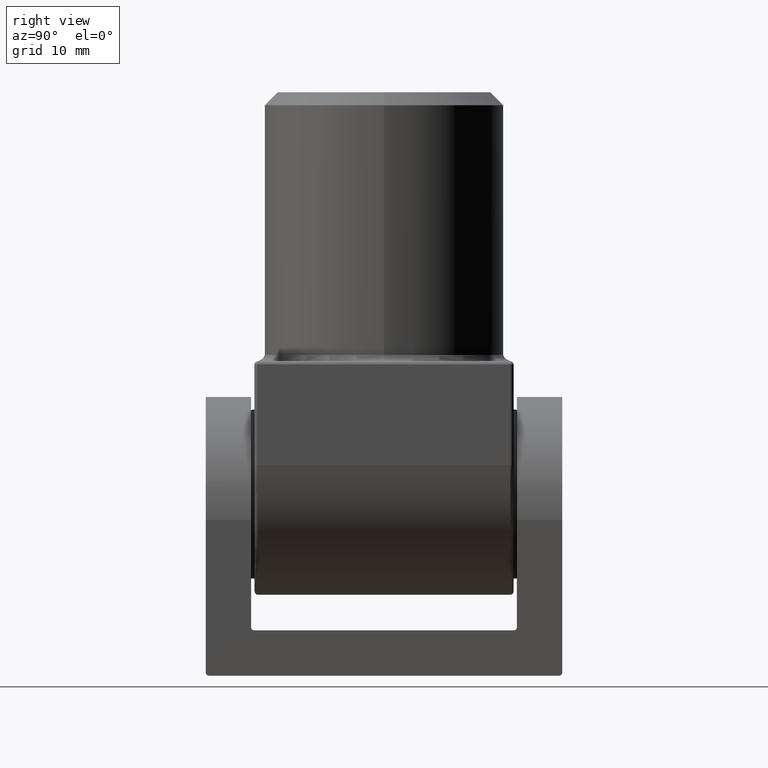
[diagram: clean part render]
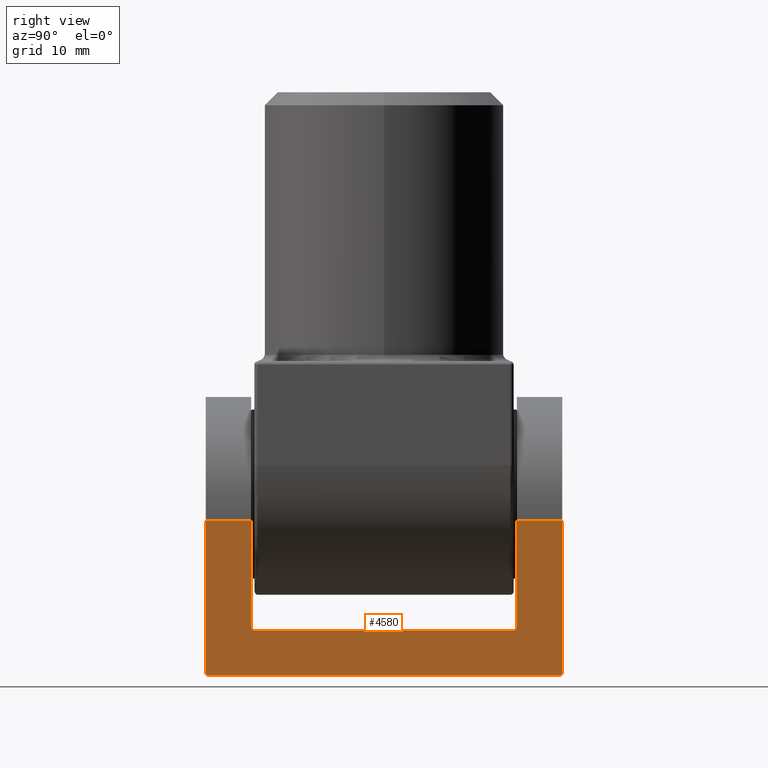
[diagram: same view with one face highlighted and labeled with its STEP entity id]
A machine part, right view. The second image highlights one B-rep face of the part: STEP entity #4580.
In plain terms, the highlighted planar face has unit normal (1, 0, 0).
Its self-contained STEP definition (entity closure, byte-faithful):
#487 = EDGE_CURVE ( 'NONE', #10644, #16123, #3998, .T. ) ;
#514 = CARTESIAN_POINT ( 'NONE',  ( 19.00000000000000000, 20.50000000000000000, 43.00000000000000000 ) ) ;
#517 = EDGE_CURVE ( 'NONE', #8284, #11794, #8267, .T. ) ;
#546 = CARTESIAN_POINT ( 'NONE',  ( 19.00000000000000000, -27.50000000000000000, 23.99999999999999645 ) ) ;
#567 = ORIENTED_EDGE ( 'NONE', *, *, #13204, .T. ) ;
#778 = CARTESIAN_POINT ( 'NONE',  ( 19.00000000000000000, 20.50000000000000000, 6.999999999999991118 ) ) ;
#838 = DIRECTION ( 'NONE',  ( 0.000000000000000000, -1.000000000000000000, 0.000000000000000000 ) ) ;
#1048 = CIRCLE ( 'NONE', #18380, 0.5000000000000004441 ) ;
#1279 = VECTOR ( 'NONE', #8686, 1000.000000000000000 ) ;
#1791 = CARTESIAN_POINT ( 'NONE',  ( 19.00000000000000000, 27.50000000000000000, 43.00000000000000000 ) ) ;
#1852 = DIRECTION ( 'NONE',  ( -0.000000000000000000, -0.000000000000000000, 1.000000000000000000 ) ) ;
#1926 = VERTEX_POINT ( 'NONE', #12676 ) ;
#2184 = CIRCLE ( 'NONE', #5671, 0.5000000000000004441 ) ;
#2414 = AXIS2_PLACEMENT_3D ( 'NONE', #18325, #3744, #12542 ) ;
#2676 = CARTESIAN_POINT ( 'NONE',  ( 19.00000000000000000, 27.00000000000000000, 0.4999999999999935052 ) ) ;
#2716 = VECTOR ( 'NONE', #12178, 1000.000000000000000 ) ;
#2845 = CIRCLE ( 'NONE', #8884, 0.5000000000000000000 ) ;
#3687 = ORIENTED_EDGE ( 'NONE', *, *, #14334, .T. ) ;
#3730 = DIRECTION ( 'NONE',  ( -1.000000000000000000, -0.000000000000000000, -0.000000000000000000 ) ) ;
#3744 = DIRECTION ( 'NONE',  ( 1.000000000000000000, 0.000000000000000000, 0.000000000000000000 ) ) ;
#3774 = VERTEX_POINT ( 'NONE', #12354 ) ;
#3879 = LINE ( 'NONE', #15039, #12233 ) ;
#3998 = LINE ( 'NONE', #778, #8712 ) ;
#4037 = CARTESIAN_POINT ( 'NONE',  ( 19.00000000000000000, 20.50000000000000000, 23.99999999999999645 ) ) ;
#4358 = ORIENTED_EDGE ( 'NONE', *, *, #4901, .T. ) ;
#4539 = ORIENTED_EDGE ( 'NONE', *, *, #17668, .T. ) ;
#4580 = ADVANCED_FACE ( 'NONE', ( #15197 ), #13933, .T. ) ;
#4825 = ORIENTED_EDGE ( 'NONE', *, *, #517, .T. ) ;
#4901 = EDGE_CURVE ( 'NONE', #5030, #13454, #3879, .T. ) ;
#5030 = VERTEX_POINT ( 'NONE', #546 ) ;
#5337 = CARTESIAN_POINT ( 'NONE',  ( 19.00000000000000000, 27.00000000000000000, -8.881158339784333749E-15 ) ) ;
#5671 = AXIS2_PLACEMENT_3D ( 'NONE', #6566, #3730, #15372 ) ;
#5764 = VECTOR ( 'NONE', #13505, 1000.000000000000000 ) ;
#6145 = EDGE_CURVE ( 'NONE', #3774, #10644, #1048, .T. ) ;
#6496 = CARTESIAN_POINT ( 'NONE',  ( 19.00000000000000000, 27.50000000000000000, -8.962636856663090566E-15 ) ) ;
#6566 = CARTESIAN_POINT ( 'NONE',  ( 19.00000000000000000, -20.00000000000000000, 7.499999999999991118 ) ) ;
#6593 = AXIS2_PLACEMENT_3D ( 'NONE', #17123, #12880, #8418 ) ;
#6810 = DIRECTION ( 'NONE',  ( 0.000000000000000000, -1.000000000000000000, 0.000000000000000000 ) ) ;
#7176 = VECTOR ( 'NONE', #1852, 1000.000000000000000 ) ;
#7186 = DIRECTION ( 'NONE',  ( 0.000000000000000000, 0.000000000000000000, -1.000000000000000000 ) ) ;
#8023 = LINE ( 'NONE', #514, #5764 ) ;
#8203 = ORIENTED_EDGE ( 'NONE', *, *, #10431, .T. ) ;
#8267 = LINE ( 'NONE', #6496, #13729 ) ;
#8284 = VERTEX_POINT ( 'NONE', #18167 ) ;
#8327 = CARTESIAN_POINT ( 'NONE',  ( 19.00000000000000000, -27.50000000000000000, 23.99999999999999645 ) ) ;
#8343 = VERTEX_POINT ( 'NONE', #11486 ) ;
#8418 = DIRECTION ( 'NONE',  ( 0.000000000000000000, 0.000000000000000000, -1.000000000000000000 ) ) ;
#8567 = EDGE_LOOP ( 'NONE', ( #4358, #16505, #4825, #8203, #3687, #4539, #14259, #18538, #17208, #18061, #567, #14308 ) ) ;
#8686 = DIRECTION ( 'NONE',  ( 0.000000000000000000, -1.000000000000000000, 0.000000000000000000 ) ) ;
#8712 = VECTOR ( 'NONE', #838, 1000.000000000000000 ) ;
#8865 = CARTESIAN_POINT ( 'NONE',  ( 19.00000000000000000, -20.00000000000000000, 6.999999999999991118 ) ) ;
#8884 = AXIS2_PLACEMENT_3D ( 'NONE', #2676, #15748, #7186 ) ;
#9252 = CARTESIAN_POINT ( 'NONE',  ( 19.00000000000000000, -20.50000000000000000, 6.999999999999991118 ) ) ;
#9299 = CARTESIAN_POINT ( 'NONE',  ( 19.00000000000000000, -20.50000000000000355, 23.99999999999999645 ) ) ;
#9475 = LINE ( 'NONE', #9252, #2716 ) ;
#9633 = VERTEX_POINT ( 'NONE', #9299 ) ;
#10431 = EDGE_CURVE ( 'NONE', #11794, #16448, #2845, .T. ) ;
#10441 = EDGE_CURVE ( 'NONE', #9633, #5030, #17327, .T. ) ;
#10644 = VERTEX_POINT ( 'NONE', #17656 ) ;
#10927 = LINE ( 'NONE', #4037, #15227 ) ;
#10937 = CARTESIAN_POINT ( 'NONE',  ( 19.00000000000000000, 20.50000000000000000, 23.99999999999999645 ) ) ;
#11475 = CARTESIAN_POINT ( 'NONE',  ( 19.00000000000000000, 27.50000000000000000, 0.4999999999999935052 ) ) ;
#11486 = CARTESIAN_POINT ( 'NONE',  ( 19.00000000000000000, 27.50000000000000000, 23.99999999999999645 ) ) ;
#11794 = VERTEX_POINT ( 'NONE', #5337 ) ;
#11799 = CIRCLE ( 'NONE', #6593, 0.5000000000000000000 ) ;
#12178 = DIRECTION ( 'NONE',  ( 0.000000000000000000, -1.927470528863118802E-16, 1.000000000000000000 ) ) ;
#12233 = VECTOR ( 'NONE', #14845, 1000.000000000000000 ) ;
#12354 = CARTESIAN_POINT ( 'NONE',  ( 19.00000000000000000, 20.50000000000000000, 7.499999999999992895 ) ) ;
#12542 = DIRECTION ( 'NONE',  ( 0.000000000000000000, 0.000000000000000000, -1.000000000000000000 ) ) ;
#12629 = LINE ( 'NONE', #1791, #7176 ) ;
#12676 = CARTESIAN_POINT ( 'NONE',  ( 19.00000000000000000, -20.50000000000000000, 7.499999999999991118 ) ) ;
#12880 = DIRECTION ( 'NONE',  ( 1.000000000000000000, 0.000000000000000000, 0.000000000000000000 ) ) ;
#13204 = EDGE_CURVE ( 'NONE', #1926, #9633, #9475, .T. ) ;
#13454 = VERTEX_POINT ( 'NONE', #16874 ) ;
#13505 = DIRECTION ( 'NONE',  ( 0.000000000000000000, 0.000000000000000000, -1.000000000000000000 ) ) ;
#13723 = DIRECTION ( 'NONE',  ( -1.000000000000000000, -0.000000000000000000, -0.000000000000000000 ) ) ;
#13729 = VECTOR ( 'NONE', #18036, 1000.000000000000000 ) ;
#13933 = PLANE ( 'NONE',  #2414 ) ;
#14259 = ORIENTED_EDGE ( 'NONE', *, *, #16264, .T. ) ;
#14308 = ORIENTED_EDGE ( 'NONE', *, *, #10441, .T. ) ;
#14334 = EDGE_CURVE ( 'NONE', #16448, #8343, #12629, .T. ) ;
#14514 = VERTEX_POINT ( 'NONE', #10937 ) ;
#14845 = DIRECTION ( 'NONE',  ( -0.000000000000000000, -0.000000000000000000, -1.000000000000000000 ) ) ;
#15039 = CARTESIAN_POINT ( 'NONE',  ( 19.00000000000000000, -27.50000000000000000, 0.000000000000000000 ) ) ;
#15197 = FACE_OUTER_BOUND ( 'NONE', #8567, .T. ) ;
#15227 = VECTOR ( 'NONE', #6810, 1000.000000000000000 ) ;
#15372 = DIRECTION ( 'NONE',  ( 0.000000000000000000, 0.000000000000000000, -1.000000000000000000 ) ) ;
#15690 = EDGE_CURVE ( 'NONE', #16123, #1926, #2184, .T. ) ;
#15748 = DIRECTION ( 'NONE',  ( 1.000000000000000000, 0.000000000000000000, 0.000000000000000000 ) ) ;
#16123 = VERTEX_POINT ( 'NONE', #8865 ) ;
#16264 = EDGE_CURVE ( 'NONE', #14514, #3774, #8023, .T. ) ;
#16448 = VERTEX_POINT ( 'NONE', #11475 ) ;
#16505 = ORIENTED_EDGE ( 'NONE', *, *, #18113, .T. ) ;
#16874 = CARTESIAN_POINT ( 'NONE',  ( 19.00000000000000000, -27.50000000000000000, 0.4999999999999998890 ) ) ;
#17123 = CARTESIAN_POINT ( 'NONE',  ( 19.00000000000000000, -27.00000000000000000, 0.4999999999999998890 ) ) ;
#17208 = ORIENTED_EDGE ( 'NONE', *, *, #487, .T. ) ;
#17327 = LINE ( 'NONE', #8327, #1279 ) ;
#17656 = CARTESIAN_POINT ( 'NONE',  ( 19.00000000000000000, 20.00000000000000000, 6.999999999999991118 ) ) ;
#17668 = EDGE_CURVE ( 'NONE', #8343, #14514, #10927, .T. ) ;
#17915 = CARTESIAN_POINT ( 'NONE',  ( 19.00000000000000000, 20.00000000000000000, 7.499999999999991118 ) ) ;
#18036 = DIRECTION ( 'NONE',  ( -0.000000000000000000, 1.000000000000000000, -1.629570337575107506E-16 ) ) ;
#18061 = ORIENTED_EDGE ( 'NONE', *, *, #15690, .T. ) ;
#18113 = EDGE_CURVE ( 'NONE', #13454, #8284, #11799, .T. ) ;
#18118 = DIRECTION ( 'NONE',  ( 0.000000000000000000, 0.000000000000000000, -1.000000000000000000 ) ) ;
#18167 = CARTESIAN_POINT ( 'NONE',  ( 19.00000000000000000, -27.00000000000000000, -8.147851687875413036E-17 ) ) ;
#18325 = CARTESIAN_POINT ( 'NONE',  ( 19.00000000000000000, 0.000000000000000000, 0.000000000000000000 ) ) ;
#18380 = AXIS2_PLACEMENT_3D ( 'NONE', #17915, #13723, #18118 ) ;
#18538 = ORIENTED_EDGE ( 'NONE', *, *, #6145, .T. ) ;